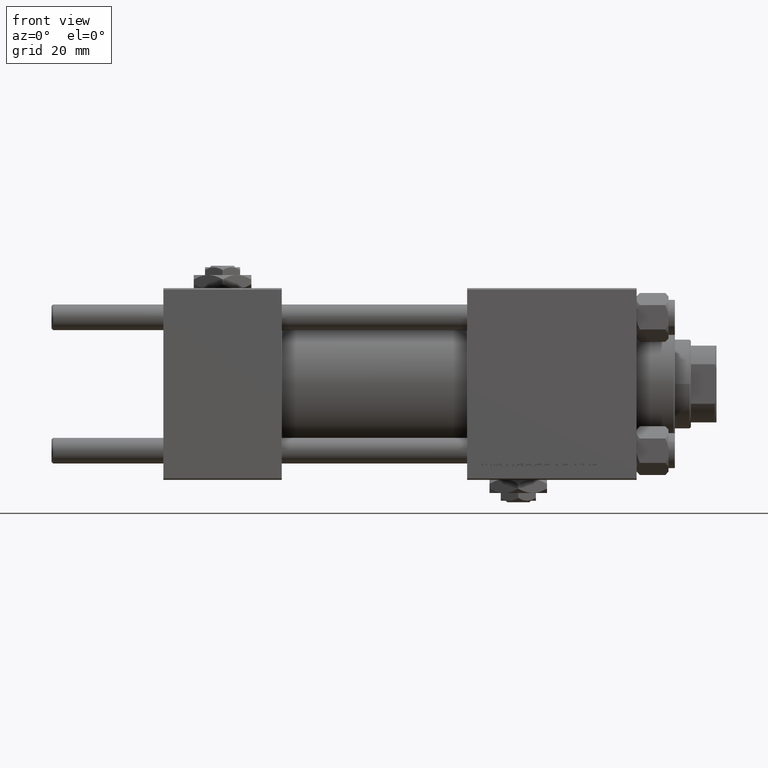
[diagram: clean part render]
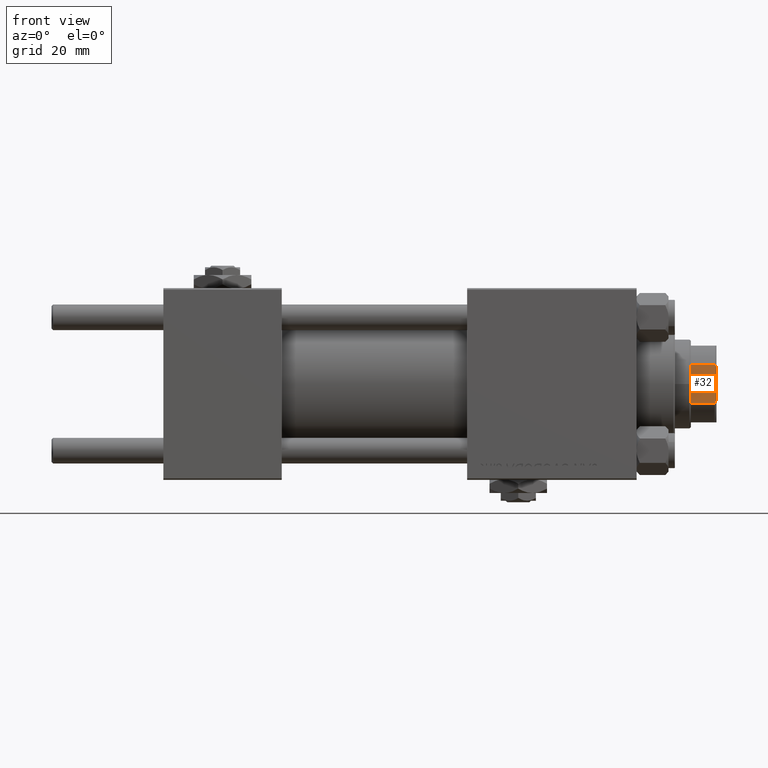
[diagram: same view with one face highlighted and labeled with its STEP entity id]
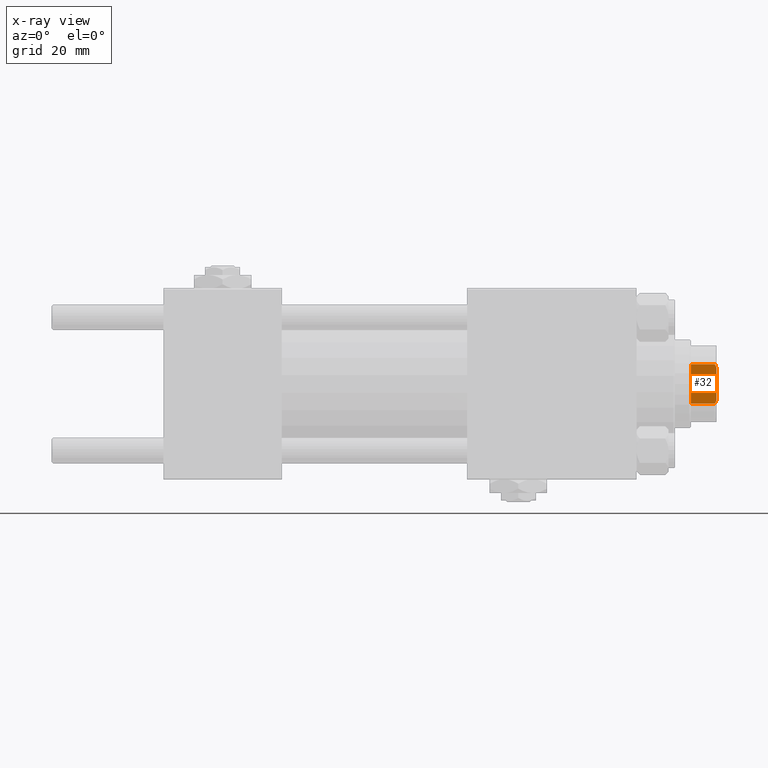
[diagram: x-ray of the same camera — body ghosted, the highlighted face saturated]
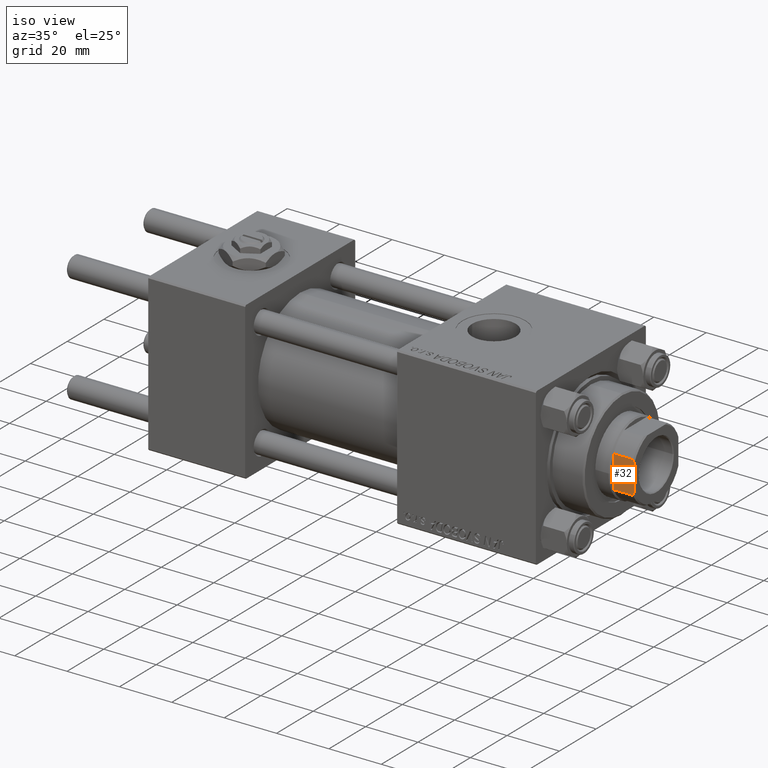
[diagram: same view with one face highlighted and labeled with its STEP entity id]
A machine part, front view. The second image highlights one B-rep face of the part: STEP entity #32.
The next image is the same camera in x-ray: the body ghosted, the highlighted face saturated — about 0% of this face is hidden behind the body in this view.
A second angle (iso view) of the same face is appended — the face is thin or edge-on in the first view.
In plain terms, the highlighted planar face has unit normal (0, 1, 0).
Its self-contained STEP definition (entity closure, byte-faithful):
#32 = ADVANCED_FACE ( 'NONE', ( #39478 ), #3500, .F. ) ;
#1109 = VECTOR ( 'NONE', #37641, 1000.000000000000000 ) ;
#3500 = PLANE ( 'NONE',  #8260 ) ;
#3685 = VERTEX_POINT ( 'NONE', #15193 ) ;
#4156 = CARTESIAN_POINT ( 'NONE',  ( 12.00000000000000178, -5.000000000000056843, 136.0000000000000000 ) ) ;
#5894 = VERTEX_POINT ( 'NONE', #49461 ) ;
#6436 = CARTESIAN_POINT ( 'NONE',  ( 11.99999999999999645, 11.99999999999999645, 136.0000000000000000 ) ) ;
#7103 = VECTOR ( 'NONE', #15543, 1000.000000000000000 ) ;
#7549 = VERTEX_POINT ( 'NONE', #16993 ) ;
#8260 = AXIS2_PLACEMENT_3D ( 'NONE', #38967, #35533, #39736 ) ;
#9531 = ORIENTED_EDGE ( 'NONE', *, *, #28679, .F. ) ;
#9745 = EDGE_CURVE ( 'NONE', #3685, #25040, #32123, .T. ) ;
#11661 = CARTESIAN_POINT ( 'NONE',  ( 11.99999999999999467, -6.184658438426501981, -0.001000000000001000089 ) ) ;
#12287 = CARTESIAN_POINT ( 'NONE',  ( 11.99999999999999467, -6.184658438426501981, 135.5000000000000284 ) ) ;
#15193 = CARTESIAN_POINT ( 'NONE',  ( 11.99999999999999467, -6.184658438426501981, 128.0000000000000853 ) ) ;
#15308 = CARTESIAN_POINT ( 'NONE',  ( 11.99999999999999822, 5.400255697127821719, 135.8460555011047006 ) ) ;
#15543 = DIRECTION ( 'NONE',  ( -2.891205793294678326E-16, 1.000000000000000000, -0.000000000000000000 ) ) ;
#16235 = CARTESIAN_POINT ( 'NONE',  ( 12.00000000000000178, -5.400255697127827936, 135.8460555011047006 ) ) ;
#16370 = DIRECTION ( 'NONE',  ( -0.000000000000000000, -0.000000000000000000, 1.000000000000000000 ) ) ;
#16993 = CARTESIAN_POINT ( 'NONE',  ( 12.00000000000000178, -5.000000000000056843, 136.0000000000000000 ) ) ;
#17684 = CARTESIAN_POINT ( 'NONE',  ( 11.99999999999999645, 11.99999999999999645, 128.0000000000000000 ) ) ;
#19245 = CARTESIAN_POINT ( 'NONE',  ( 11.99999999999999645, 6.184658438426496652, 135.5000000000000284 ) ) ;
#19246 = CARTESIAN_POINT ( 'NONE',  ( 11.99999999999999645, 6.184658438426496652, 135.5000000000000284 ) ) ;
#22233 = EDGE_CURVE ( 'NONE', #3685, #5894, #26340, .T. ) ;
#23708 = CARTESIAN_POINT ( 'NONE',  ( 11.99999999999999822, 5.000000000000037303, 136.0000000000000000 ) ) ;
#23995 = VERTEX_POINT ( 'NONE', #48164 ) ;
#24507 = DIRECTION ( 'NONE',  ( -0.000000000000000000, -0.000000000000000000, 1.000000000000000000 ) ) ;
#25040 = VERTEX_POINT ( 'NONE', #25153 ) ;
#25153 = CARTESIAN_POINT ( 'NONE',  ( 11.99999999999999467, -6.184658438426501981, 135.5000000000000284 ) ) ;
#25595 = ORIENTED_EDGE ( 'NONE', *, *, #35730, .T. ) ;
#26340 = LINE ( 'NONE', #17684, #1109 ) ;
#28679 = EDGE_CURVE ( 'NONE', #7549, #23995, #51501, .T. ) ;
#31602 = CARTESIAN_POINT ( 'NONE',  ( 11.99999999999999645, 6.184658438426496652, -0.001000000000001000089 ) ) ;
#32123 = LINE ( 'NONE', #11661, #47081 ) ;
#33332 = VERTEX_POINT ( 'NONE', #19245 ) ;
#35533 = DIRECTION ( 'NONE',  ( -1.000000000000000000, -2.891205793294678326E-16, 0.000000000000000000 ) ) ;
#35730 = EDGE_CURVE ( 'NONE', #33332, #23995, #50308, .T. ) ;
#36192 = CARTESIAN_POINT ( 'NONE',  ( 12.00000000000000178, -5.794808544282264329, 135.6785991435214385 ) ) ;
#37641 = DIRECTION ( 'NONE',  ( -2.891205793294678326E-16, 1.000000000000000000, -0.000000000000000000 ) ) ;
#38967 = CARTESIAN_POINT ( 'NONE',  ( 11.99999999999999645, 11.99999999999999645, 136.0000000000000000 ) ) ;
#39278 = EDGE_CURVE ( 'NONE', #5894, #33332, #51551, .T. ) ;
#39446 = ORIENTED_EDGE ( 'NONE', *, *, #49193, .T. ) ;
#39478 = FACE_OUTER_BOUND ( 'NONE', #42318, .T. ) ;
#39736 = DIRECTION ( 'NONE',  ( 2.891205793294678326E-16, -1.000000000000000000, 0.000000000000000000 ) ) ;
#40142 = ORIENTED_EDGE ( 'NONE', *, *, #9745, .F. ) ;
#42318 = EDGE_LOOP ( 'NONE', ( #42437, #25595, #9531, #39446, #40142, #51507 ) ) ;
#42437 = ORIENTED_EDGE ( 'NONE', *, *, #39278, .T. ) ;
#42684 = VECTOR ( 'NONE', #24507, 1000.000000000000000 ) ;
#46504 = B_SPLINE_CURVE_WITH_KNOTS ( 'NONE', 3,
 ( #4156, #16235, #36192, #12287 ),
 .UNSPECIFIED., .F., .F.,
 ( 4, 4 ),
 ( 8.673617379884035472E-19, 0.001285852097146073176 ),
 .UNSPECIFIED. ) ;
#47081 = VECTOR ( 'NONE', #16370, 1000.000000000000000 ) ;
#48164 = CARTESIAN_POINT ( 'NONE',  ( 11.99999999999999822, 5.000000000000037303, 136.0000000000000000 ) ) ;
#49193 = EDGE_CURVE ( 'NONE', #7549, #25040, #46504, .T. ) ;
#49461 = CARTESIAN_POINT ( 'NONE',  ( 11.99999999999999645, 6.184658438426496652, 128.0000000000000853 ) ) ;
#50308 = B_SPLINE_CURVE_WITH_KNOTS ( 'NONE', 3,
 ( #19246, #51268, #15308, #23708 ),
 .UNSPECIFIED., .F., .F.,
 ( 4, 4 ),
 ( 0.000000000000000000, 0.001285852097146085102 ),
 .UNSPECIFIED. ) ;
#51268 = CARTESIAN_POINT ( 'NONE',  ( 11.99999999999999645, 5.794808544282254559, 135.6785991435214385 ) ) ;
#51501 = LINE ( 'NONE', #6436, #7103 ) ;
#51507 = ORIENTED_EDGE ( 'NONE', *, *, #22233, .T. ) ;
#51551 = LINE ( 'NONE', #31602, #42684 ) ;